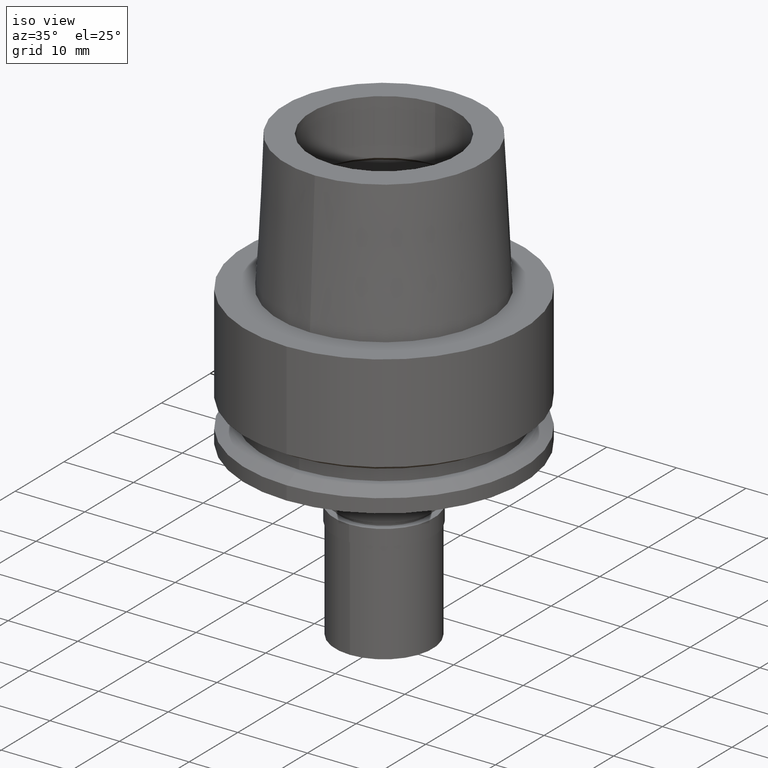
[diagram: clean part render]
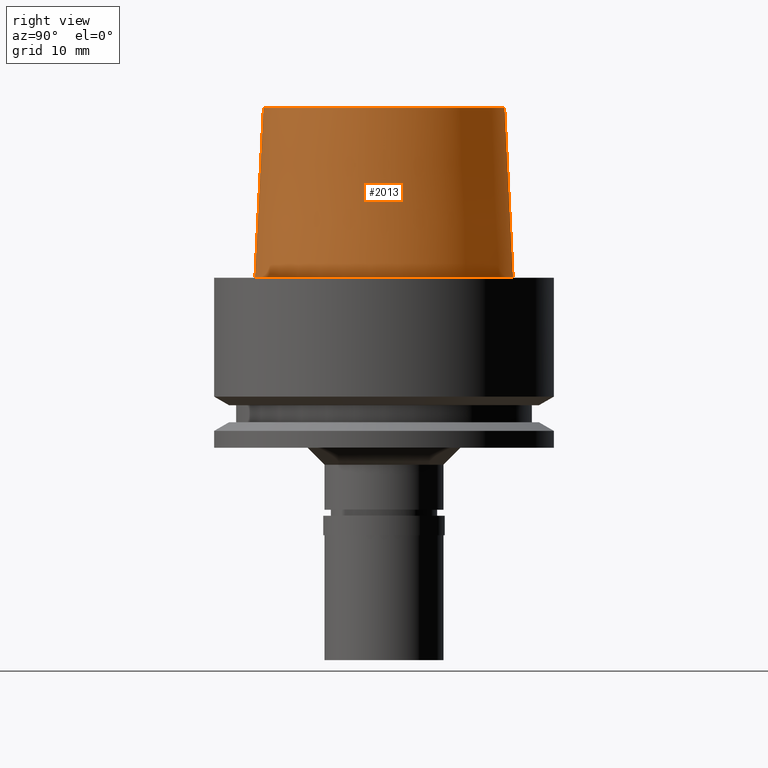
[diagram: tour spotlight — one face highlighted and labeled with its STEP entity id]
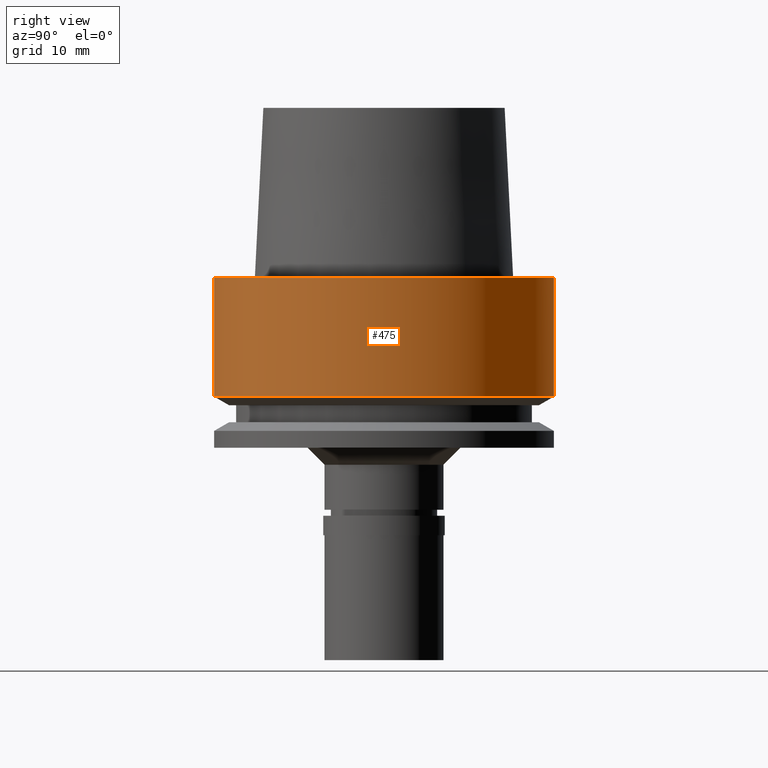
[diagram: tour spotlight — one face highlighted and labeled with its STEP entity id]
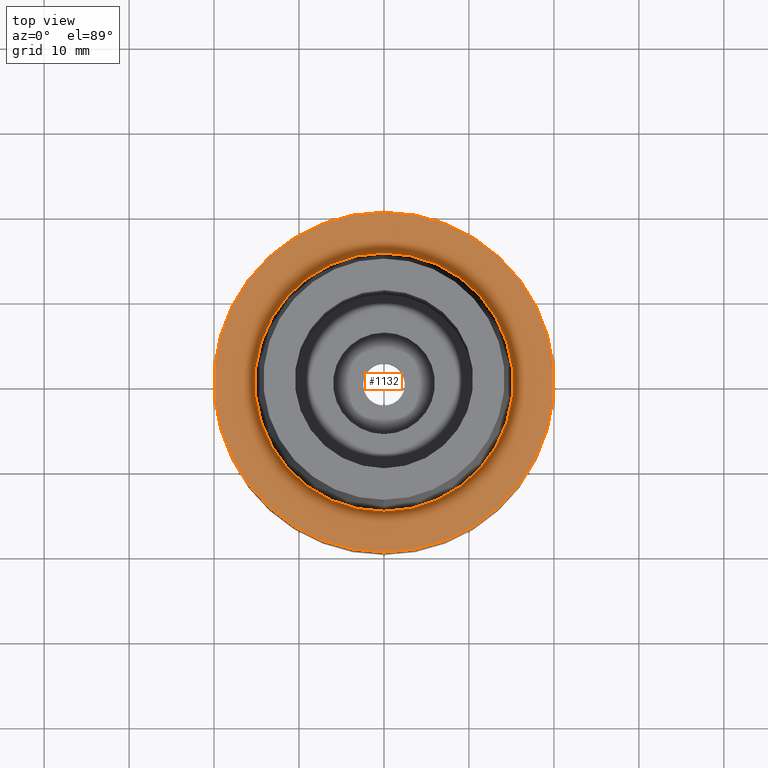
[diagram: tour spotlight — one face highlighted and labeled with its STEP entity id]
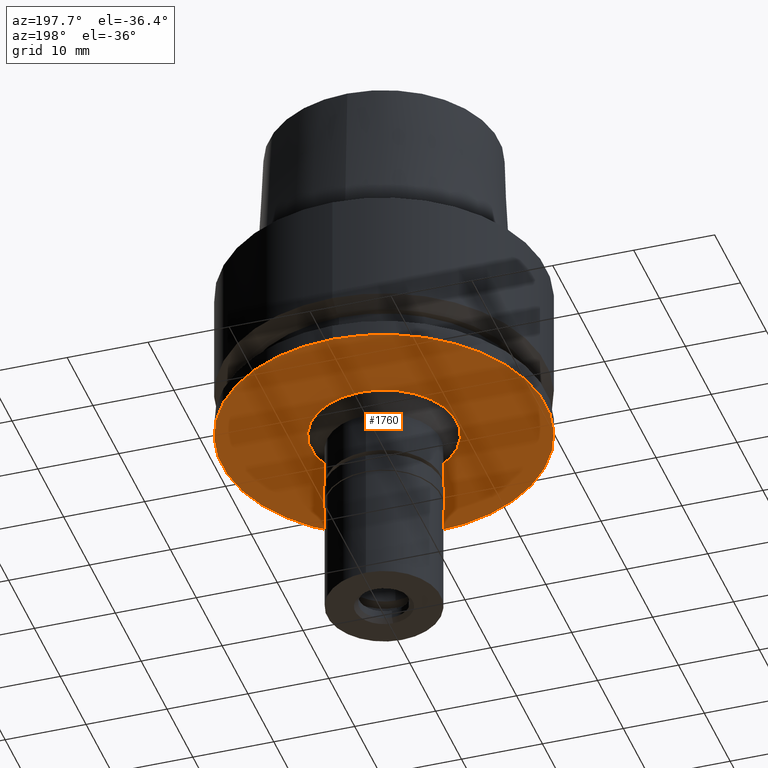
[diagram: tour spotlight — one face highlighted and labeled with its STEP entity id]
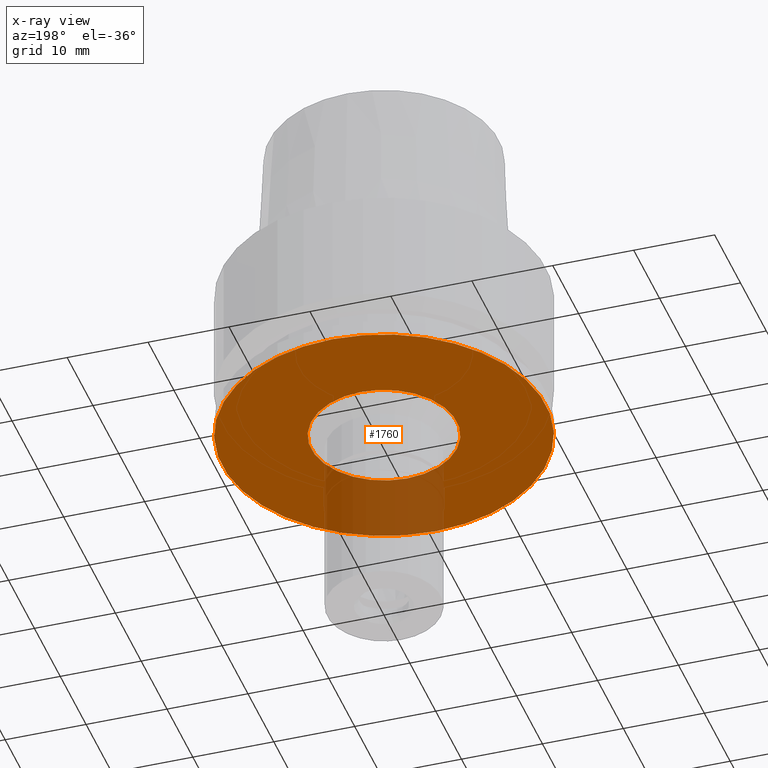
[diagram: x-ray of the same camera — body ghosted, this tour face saturated]
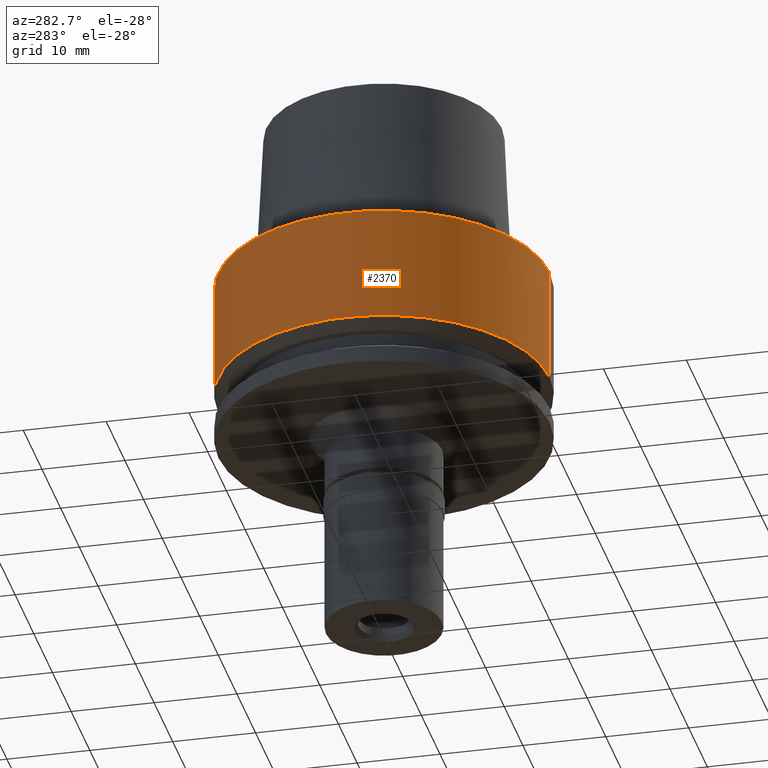
[diagram: tour spotlight — one face highlighted and labeled with its STEP entity id]
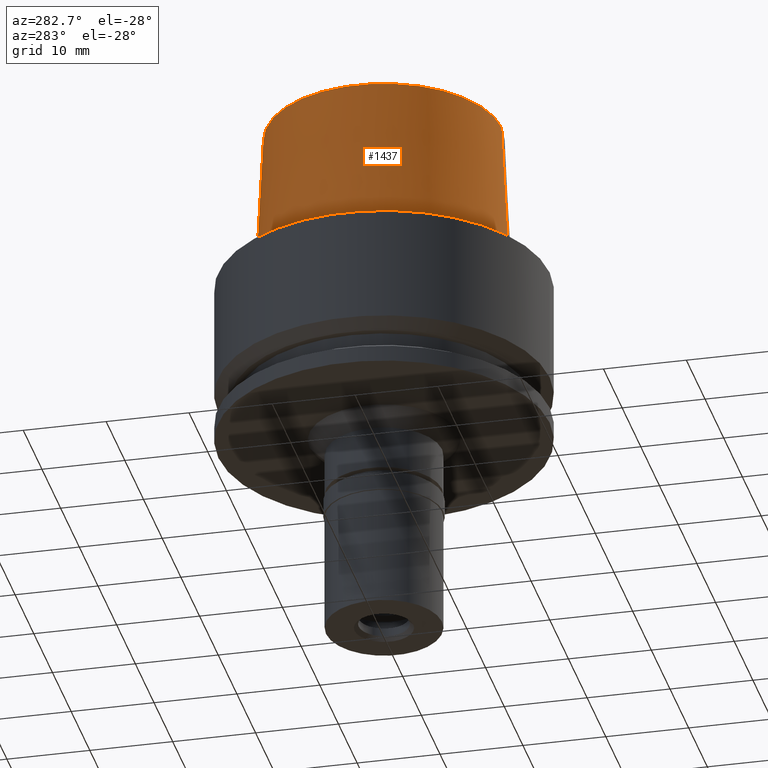
[diagram: tour spotlight — one face highlighted and labeled with its STEP entity id]
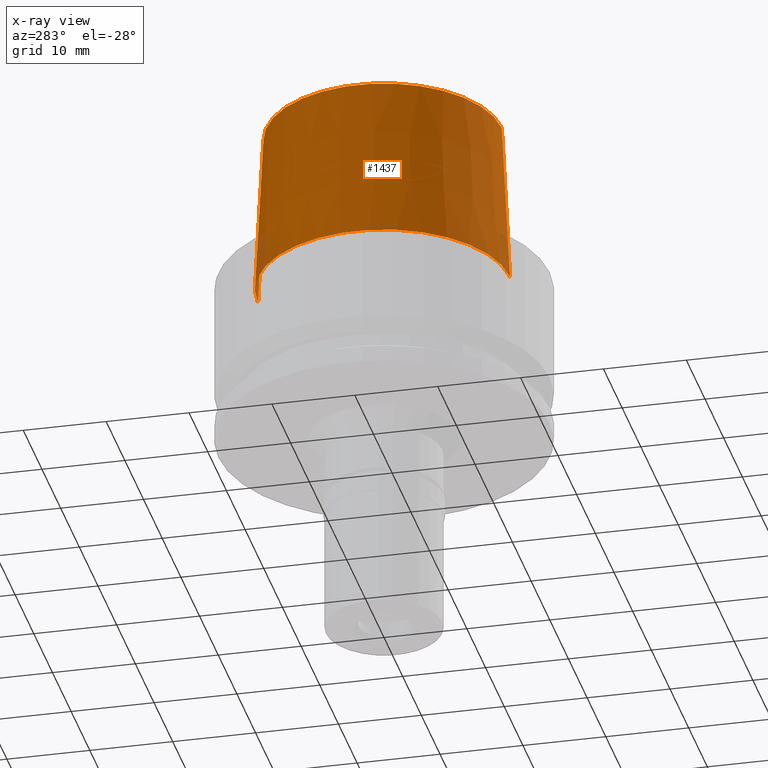
[diagram: x-ray of the same camera — body ghosted, this tour face saturated]
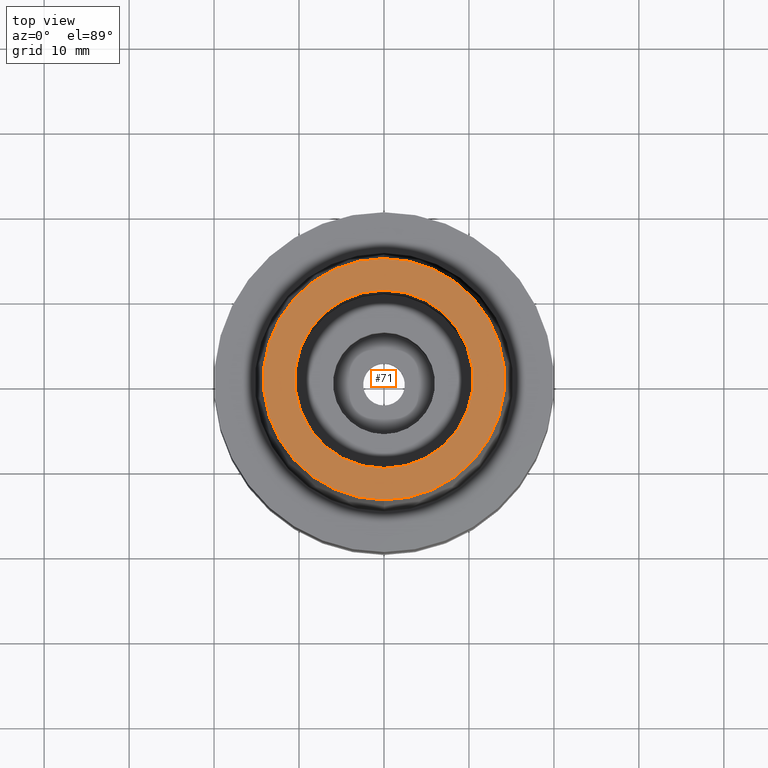
[diagram: tour spotlight — one face highlighted and labeled with its STEP entity id]
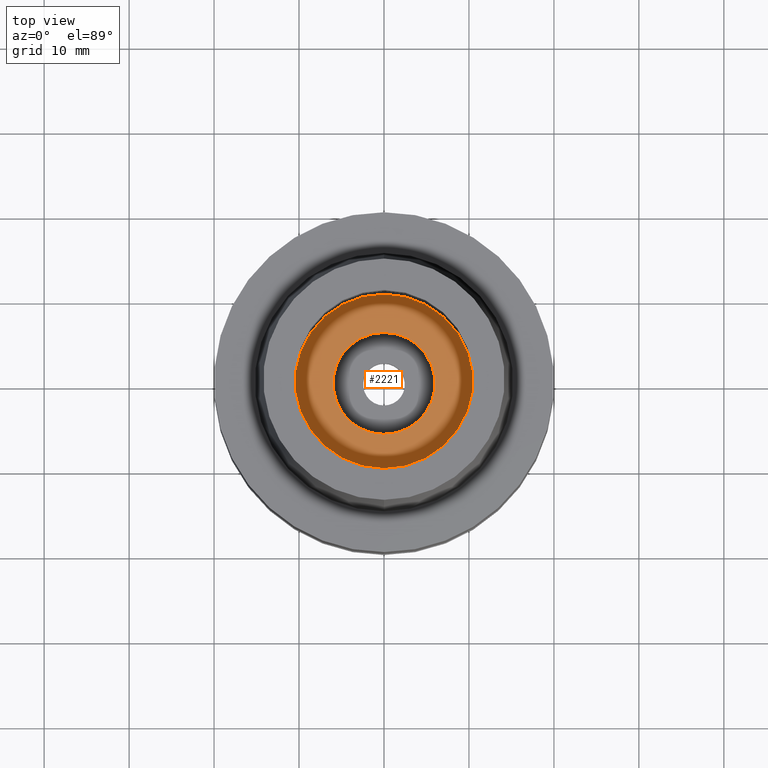
[diagram: tour spotlight — one face highlighted and labeled with its STEP entity id]
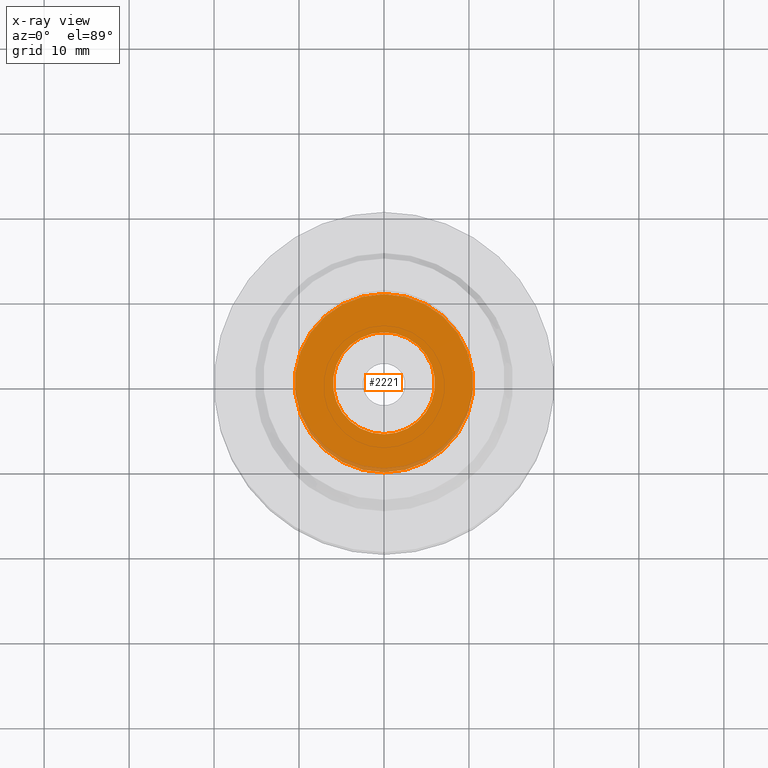
[diagram: x-ray of the same camera — body ghosted, this tour face saturated]
A machine part: a face-by-face anatomy tour. The part has 74 B-rep faces; the first image is the clean iso view, then the 8 largest visible faces are spotlighted one at a time (largest first), each with its STEP entity span.

Face 1 — right view, entity #2013. In plain terms, the highlighted conical surface has half-angle 2.862 deg.
Definition (entity closure, byte-faithful):
#1 = CARTESIAN_POINT ( 'NONE',  ( 0.0000000000000000000, 0.0000000000000000000, 6.821210263297000155E-13 ) ) ;
#52 = CARTESIAN_POINT ( 'NONE',  ( 0.0000000000000000000, -14.20000146305999955, 20.00000000000000000 ) ) ;
#283 = AXIS2_PLACEMENT_3D ( 'NONE', #1996, #2604, #1389 ) ;
#440 = DIRECTION ( 'NONE',  ( 0.0000000000000000000, 0.0000000000000000000, -1.000000000000000000 ) ) ;
#447 = LINE ( 'NONE', #2314, #2144 ) ;
#453 = DIRECTION ( 'NONE',  ( 0.0000000000000000000, -1.000000000000000000, 0.0000000000000000000 ) ) ;
#469 = CONICAL_SURFACE ( 'NONE', #2630, 14.70000054865000116, 0.04995830450907576964 ) ;
#512 = EDGE_LOOP ( 'NONE', ( #1118, #972, #1949, #1209 ) ) ;
#685 = AXIS2_PLACEMENT_3D ( 'NONE', #1, #881, #453 ) ;
#691 = VERTEX_POINT ( 'NONE', #1544 ) ;
#702 = DIRECTION ( 'NONE',  ( 0.0000000000000000000, -1.000000000000000000, 0.0000000000000000000 ) ) ;
#843 = CARTESIAN_POINT ( 'NONE',  ( 0.0000000000000000000, -14.20000146305999955, 20.00000000000000000 ) ) ;
#880 = EDGE_CURVE ( 'NONE', #2252, #1570, #1941, .T. ) ;
#881 = DIRECTION ( 'NONE',  ( 0.0000000000000000000, 0.0000000000000000000, 1.000000000000000000 ) ) ;
#972 = ORIENTED_EDGE ( 'NONE', *, *, #1927, .T. ) ;
#1051 = LINE ( 'NONE', #843, #2195 ) ;
#1118 = ORIENTED_EDGE ( 'NONE', *, *, #880, .T. ) ;
#1209 = ORIENTED_EDGE ( 'NONE', *, *, #1319, .F. ) ;
#1221 = CARTESIAN_POINT ( 'NONE',  ( 0.0000000000000000000, 15.19999963424000100, 3.801403636316999971E-13 ) ) ;
#1319 = EDGE_CURVE ( 'NONE', #2252, #1414, #447, .T. ) ;
#1389 = DIRECTION ( 'NONE',  ( 0.0000000000000000000, 1.000000000000000000, 0.0000000000000000000 ) ) ;
#1414 = VERTEX_POINT ( 'NONE', #1221 ) ;
#1520 = CARTESIAN_POINT ( 'NONE',  ( 0.0000000000000000000, 14.20000146305999955, 20.00000000000000000 ) ) ;
#1544 = CARTESIAN_POINT ( 'NONE',  ( 0.0000000000000000000, -15.19999963424000100, 3.801403636316999971E-13 ) ) ;
#1570 = VERTEX_POINT ( 'NONE', #52 ) ;
#1655 = DIRECTION ( 'NONE',  ( 0.0000000000000000000, -0.04993752584496928548, -0.9987523434327867378 ) ) ;
#1731 = CARTESIAN_POINT ( 'NONE',  ( 0.0000000000000000000, 0.0000000000000000000, 10.00000000000000000 ) ) ;
#1927 = EDGE_CURVE ( 'NONE', #1570, #691, #1051, .T. ) ;
#1941 = CIRCLE ( 'NONE', #283, 14.20000146305999955 ) ;
#1949 = ORIENTED_EDGE ( 'NONE', *, *, #2464, .T. ) ;
#1996 = CARTESIAN_POINT ( 'NONE',  ( 0.0000000000000000000, 0.0000000000000000000, 20.00000000000000000 ) ) ;
#2013 = ADVANCED_FACE ( 'NONE', ( #2552 ), #469, .T. ) ;
#2098 = DIRECTION ( 'NONE',  ( 0.0000000000000000000, 0.04993752584496928548, -0.9987523434327867378 ) ) ;
#2144 = VECTOR ( 'NONE', #2098, 999.9999999999998863 ) ;
#2195 = VECTOR ( 'NONE', #1655, 999.9999999999998863 ) ;
#2252 = VERTEX_POINT ( 'NONE', #1520 ) ;
#2293 = CIRCLE ( 'NONE', #685, 15.19999963424000100 ) ;
#2314 = CARTESIAN_POINT ( 'NONE',  ( 0.0000000000000000000, 14.20000146305999955, 20.00000000000000000 ) ) ;
#2464 = EDGE_CURVE ( 'NONE', #691, #1414, #2293, .T. ) ;
#2552 = FACE_OUTER_BOUND ( 'NONE', #512, .T. ) ;
#2604 = DIRECTION ( 'NONE',  ( 0.0000000000000000000, 0.0000000000000000000, -1.000000000000000000 ) ) ;
#2630 = AXIS2_PLACEMENT_3D ( 'NONE', #1731, #440, #702 ) ;

Face 2 — right view, entity #475. In plain terms, the highlighted cylindrical surface (partial cylindrical patch) has radius 20 mm, axis along (0, 0, 1).
Definition (entity closure, byte-faithful):
#50 = DIRECTION ( 'NONE',  ( 0.0000000000000000000, 1.000000000000000000, 0.0000000000000000000 ) ) ;
#294 = LINE ( 'NONE', #1337, #1592 ) ;
#325 = CARTESIAN_POINT ( 'NONE',  ( 0.0000000000000000000, 0.0000000000000000000, -3.552713678800999489E-14 ) ) ;
#475 = ADVANCED_FACE ( 'NONE', ( #2193 ), #1744, .T. ) ;
#638 = AXIS2_PLACEMENT_3D ( 'NONE', #325, #1572, #963 ) ;
#639 = ORIENTED_EDGE ( 'NONE', *, *, #2375, .F. ) ;
#776 = EDGE_LOOP ( 'NONE', ( #2641, #1145, #2185, #639 ) ) ;
#788 = EDGE_CURVE ( 'NONE', #2391, #2172, #2282, .T. ) ;
#820 = DIRECTION ( 'NONE',  ( 0.0000000000000000000, 2.439758400998999725E-14, -1.000000000000000000 ) ) ;
#850 = CARTESIAN_POINT ( 'NONE',  ( 0.0000000000000000000, -20.00000000000000000, -13.97927405538000123 ) ) ;
#963 = DIRECTION ( 'NONE',  ( 0.0000000000000000000, 1.000000000000000000, 0.0000000000000000000 ) ) ;
#1110 = CARTESIAN_POINT ( 'NONE',  ( 0.0000000000000000000, 0.0000000000000000000, -44.04999999999999716 ) ) ;
#1145 = ORIENTED_EDGE ( 'NONE', *, *, #1305, .T. ) ;
#1196 = LINE ( 'NONE', #1842, #2542 ) ;
#1305 = EDGE_CURVE ( 'NONE', #2172, #1966, #294, .T. ) ;
#1337 = CARTESIAN_POINT ( 'NONE',  ( 0.0000000000000000000, -20.00000000000000000, -1.894780628694000185E-14 ) ) ;
#1353 = DIRECTION ( 'NONE',  ( 0.0000000000000000000, -2.439758400998999725E-14, -1.000000000000000000 ) ) ;
#1376 = CARTESIAN_POINT ( 'NONE',  ( 0.0000000000000000000, -20.00000000000000000, -3.552713678800999489E-14 ) ) ;
#1433 = DIRECTION ( 'NONE',  ( 0.0000000000000000000, -1.000000000000000000, 0.0000000000000000000 ) ) ;
#1474 = EDGE_CURVE ( 'NONE', #1966, #2515, #2412, .T. ) ;
#1572 = DIRECTION ( 'NONE',  ( 0.0000000000000000000, 0.0000000000000000000, -1.000000000000000000 ) ) ;
#1592 = VECTOR ( 'NONE', #1353, 1000.000000000000000 ) ;
#1636 = DIRECTION ( 'NONE',  ( 0.0000000000000000000, 0.0000000000000000000, 1.000000000000000000 ) ) ;
#1744 = CYLINDRICAL_SURFACE ( 'NONE', #2541, 20.00000000000000000 ) ;
#1842 = CARTESIAN_POINT ( 'NONE',  ( 0.0000000000000000000, 20.00000000000000000, -1.894780628694000185E-14 ) ) ;
#1907 = CARTESIAN_POINT ( 'NONE',  ( 0.0000000000000000000, 0.0000000000000000000, -13.97927405538000123 ) ) ;
#1924 = DIRECTION ( 'NONE',  ( 0.0000000000000000000, 0.0000000000000000000, 1.000000000000000000 ) ) ;
#1966 = VERTEX_POINT ( 'NONE', #850 ) ;
#2172 = VERTEX_POINT ( 'NONE', #1376 ) ;
#2185 = ORIENTED_EDGE ( 'NONE', *, *, #1474, .T. ) ;
#2193 = FACE_OUTER_BOUND ( 'NONE', #776, .T. ) ;
#2260 = CARTESIAN_POINT ( 'NONE',  ( 0.0000000000000000000, 20.00000000000000000, -3.552713678800999489E-14 ) ) ;
#2282 = CIRCLE ( 'NONE', #638, 20.00000000000000000 ) ;
#2368 = AXIS2_PLACEMENT_3D ( 'NONE', #1907, #1636, #1433 ) ;
#2375 = EDGE_CURVE ( 'NONE', #2391, #2515, #1196, .T. ) ;
#2391 = VERTEX_POINT ( 'NONE', #2260 ) ;
#2412 = CIRCLE ( 'NONE', #2368, 20.00000000000000000 ) ;
#2515 = VERTEX_POINT ( 'NONE', #2522 ) ;
#2522 = CARTESIAN_POINT ( 'NONE',  ( 0.0000000000000000000, 20.00000000000000000, -13.97927405538000123 ) ) ;
#2541 = AXIS2_PLACEMENT_3D ( 'NONE', #1110, #1924, #50 ) ;
#2542 = VECTOR ( 'NONE', #820, 1000.000000000000000 ) ;
#2641 = ORIENTED_EDGE ( 'NONE', *, *, #788, .T. ) ;

Face 3 — top view, entity #1132. In plain terms, the highlighted planar face has unit normal (0, 0, 1).
Definition (entity closure, byte-faithful):
#1 = CARTESIAN_POINT ( 'NONE',  ( 0.0000000000000000000, 0.0000000000000000000, 6.821210263297000155E-13 ) ) ;
#175 = FACE_BOUND ( 'NONE', #1611, .T. ) ;
#316 = CARTESIAN_POINT ( 'NONE',  ( 0.0000000000000000000, 0.0000000000000000000, -3.552713678800999489E-14 ) ) ;
#325 = CARTESIAN_POINT ( 'NONE',  ( 0.0000000000000000000, 0.0000000000000000000, -3.552713678800999489E-14 ) ) ;
#382 = CIRCLE ( 'NONE', #2578, 20.00000000000000000 ) ;
#406 = FACE_OUTER_BOUND ( 'NONE', #1908, .T. ) ;
#453 = DIRECTION ( 'NONE',  ( 0.0000000000000000000, -1.000000000000000000, 0.0000000000000000000 ) ) ;
#633 = DIRECTION ( 'NONE',  ( 1.000000000000000000, 0.0000000000000000000, 0.0000000000000000000 ) ) ;
#638 = AXIS2_PLACEMENT_3D ( 'NONE', #325, #1572, #963 ) ;
#685 = AXIS2_PLACEMENT_3D ( 'NONE', #1, #881, #453 ) ;
#691 = VERTEX_POINT ( 'NONE', #1544 ) ;
#770 = CARTESIAN_POINT ( 'NONE',  ( 0.0000000000000000000, 0.0000000000000000000, 6.821210263297000155E-13 ) ) ;
#788 = EDGE_CURVE ( 'NONE', #2391, #2172, #2282, .T. ) ;
#794 = ORIENTED_EDGE ( 'NONE', *, *, #2464, .F. ) ;
#881 = DIRECTION ( 'NONE',  ( 0.0000000000000000000, 0.0000000000000000000, 1.000000000000000000 ) ) ;
#963 = DIRECTION ( 'NONE',  ( 0.0000000000000000000, 1.000000000000000000, 0.0000000000000000000 ) ) ;
#1132 = ADVANCED_FACE ( 'NONE', ( #406, #175 ), #1446, .T. ) ;
#1157 = DIRECTION ( 'NONE',  ( 0.0000000000000000000, 0.0000000000000000000, -1.000000000000000000 ) ) ;
#1221 = CARTESIAN_POINT ( 'NONE',  ( 0.0000000000000000000, 15.19999963424000100, 3.801403636316999971E-13 ) ) ;
#1251 = CARTESIAN_POINT ( 'NONE',  ( 0.0000000000000000000, 0.0000000000000000000, 0.0000000000000000000 ) ) ;
#1376 = CARTESIAN_POINT ( 'NONE',  ( 0.0000000000000000000, -20.00000000000000000, -3.552713678800999489E-14 ) ) ;
#1388 = AXIS2_PLACEMENT_3D ( 'NONE', #770, #2619, #2230 ) ;
#1414 = VERTEX_POINT ( 'NONE', #1221 ) ;
#1446 = PLANE ( 'NONE',  #1934 ) ;
#1447 = ORIENTED_EDGE ( 'NONE', *, *, #2281, .F. ) ;
#1544 = CARTESIAN_POINT ( 'NONE',  ( 0.0000000000000000000, -15.19999963424000100, 3.801403636316999971E-13 ) ) ;
#1572 = DIRECTION ( 'NONE',  ( 0.0000000000000000000, 0.0000000000000000000, -1.000000000000000000 ) ) ;
#1611 = EDGE_LOOP ( 'NONE', ( #1447, #794 ) ) ;
#1775 = DIRECTION ( 'NONE',  ( 0.0000000000000000000, -1.000000000000000000, 0.0000000000000000000 ) ) ;
#1908 = EDGE_LOOP ( 'NONE', ( #2466, #2607 ) ) ;
#1934 = AXIS2_PLACEMENT_3D ( 'NONE', #1251, #2070, #633 ) ;
#2070 = DIRECTION ( 'NONE',  ( 0.0000000000000000000, 0.0000000000000000000, 1.000000000000000000 ) ) ;
#2166 = EDGE_CURVE ( 'NONE', #2172, #2391, #382, .T. ) ;
#2172 = VERTEX_POINT ( 'NONE', #1376 ) ;
#2230 = DIRECTION ( 'NONE',  ( 0.0000000000000000000, 1.000000000000000000, 0.0000000000000000000 ) ) ;
#2260 = CARTESIAN_POINT ( 'NONE',  ( 0.0000000000000000000, 20.00000000000000000, -3.552713678800999489E-14 ) ) ;
#2281 = EDGE_CURVE ( 'NONE', #1414, #691, #2634, .T. ) ;
#2282 = CIRCLE ( 'NONE', #638, 20.00000000000000000 ) ;
#2293 = CIRCLE ( 'NONE', #685, 15.19999963424000100 ) ;
#2391 = VERTEX_POINT ( 'NONE', #2260 ) ;
#2464 = EDGE_CURVE ( 'NONE', #691, #1414, #2293, .T. ) ;
#2466 = ORIENTED_EDGE ( 'NONE', *, *, #788, .F. ) ;
#2578 = AXIS2_PLACEMENT_3D ( 'NONE', #316, #1157, #1775 ) ;
#2607 = ORIENTED_EDGE ( 'NONE', *, *, #2166, .F. ) ;
#2619 = DIRECTION ( 'NONE',  ( 0.0000000000000000000, 0.0000000000000000000, 1.000000000000000000 ) ) ;
#2634 = CIRCLE ( 'NONE', #1388, 15.19999963424000100 ) ;

Face 4 — auxiliary view, entity #1760. An x-ray twin of the same camera follows (body ghosted, this face saturated) — the face is partly hidden behind the body. In plain terms, the highlighted planar face has unit normal (0, 0, 1).
Definition (entity closure, byte-faithful):
#32 = DIRECTION ( 'NONE',  ( 0.0000000000000000000, 0.0000000000000000000, -1.000000000000000000 ) ) ;
#92 = EDGE_CURVE ( 'NONE', #260, #344, #1508, .T. ) ;
#107 = ORIENTED_EDGE ( 'NONE', *, *, #92, .F. ) ;
#108 = AXIS2_PLACEMENT_3D ( 'NONE', #1193, #2677, #2477 ) ;
#260 = VERTEX_POINT ( 'NONE', #852 ) ;
#320 = DIRECTION ( 'NONE',  ( 1.000000000000000000, 0.0000000000000000000, 0.0000000000000000000 ) ) ;
#326 = AXIS2_PLACEMENT_3D ( 'NONE', #2239, #2474, #2268 ) ;
#344 = VERTEX_POINT ( 'NONE', #1458 ) ;
#471 = CIRCLE ( 'NONE', #1514, 20.00000000000000000 ) ;
#535 = CARTESIAN_POINT ( 'NONE',  ( 0.0000000000000000000, 9.000000000000000000, -20.00000000000000000 ) ) ;
#601 = CIRCLE ( 'NONE', #2457, 9.000000000000000000 ) ;
#743 = VERTEX_POINT ( 'NONE', #535 ) ;
#852 = CARTESIAN_POINT ( 'NONE',  ( 0.0000000000000000000, -20.00000000000000000, -20.00000000000000000 ) ) ;
#883 = CARTESIAN_POINT ( 'NONE',  ( 0.0000000000000000000, 0.0000000000000000000, -20.00000000000000000 ) ) ;
#1108 = EDGE_CURVE ( 'NONE', #1315, #743, #601, .T. ) ;
#1133 = EDGE_LOOP ( 'NONE', ( #2524, #1332 ) ) ;
#1141 = CARTESIAN_POINT ( 'NONE',  ( 0.0000000000000000000, 0.0000000000000000000, -20.00000000000000000 ) ) ;
#1165 = CIRCLE ( 'NONE', #326, 9.000000000000000000 ) ;
#1193 = CARTESIAN_POINT ( 'NONE',  ( 0.0000000000000000000, 0.0000000000000000000, -20.00000000000000000 ) ) ;
#1281 = CARTESIAN_POINT ( 'NONE',  ( 0.0000000000000000000, -9.000000000000000000, -20.00000000000000000 ) ) ;
#1315 = VERTEX_POINT ( 'NONE', #1281 ) ;
#1326 = EDGE_LOOP ( 'NONE', ( #1346, #107 ) ) ;
#1332 = ORIENTED_EDGE ( 'NONE', *, *, #1108, .F. ) ;
#1346 = ORIENTED_EDGE ( 'NONE', *, *, #2602, .F. ) ;
#1422 = DIRECTION ( 'NONE',  ( 0.0000000000000000000, -1.000000000000000000, 0.0000000000000000000 ) ) ;
#1458 = CARTESIAN_POINT ( 'NONE',  ( 0.0000000000000000000, 20.00000000000000000, -20.00000000000000000 ) ) ;
#1485 = EDGE_CURVE ( 'NONE', #743, #1315, #1165, .T. ) ;
#1508 = CIRCLE ( 'NONE', #108, 20.00000000000000000 ) ;
#1514 = AXIS2_PLACEMENT_3D ( 'NONE', #2568, #2127, #1711 ) ;
#1711 = DIRECTION ( 'NONE',  ( 0.0000000000000000000, 1.000000000000000000, 0.0000000000000000000 ) ) ;
#1760 = ADVANCED_FACE ( 'NONE', ( #1779, #2632 ), #2431, .F. ) ;
#1779 = FACE_OUTER_BOUND ( 'NONE', #1326, .T. ) ;
#1790 = DIRECTION ( 'NONE',  ( 0.0000000000000000000, 0.0000000000000000000, 1.000000000000000000 ) ) ;
#2127 = DIRECTION ( 'NONE',  ( 0.0000000000000000000, 0.0000000000000000000, 1.000000000000000000 ) ) ;
#2239 = CARTESIAN_POINT ( 'NONE',  ( 0.0000000000000000000, 0.0000000000000000000, -20.00000000000000000 ) ) ;
#2268 = DIRECTION ( 'NONE',  ( 0.0000000000000000000, 1.000000000000000000, 0.0000000000000000000 ) ) ;
#2431 = PLANE ( 'NONE',  #2460 ) ;
#2457 = AXIS2_PLACEMENT_3D ( 'NONE', #883, #32, #1422 ) ;
#2460 = AXIS2_PLACEMENT_3D ( 'NONE', #1141, #1790, #320 ) ;
#2474 = DIRECTION ( 'NONE',  ( 0.0000000000000000000, 0.0000000000000000000, -1.000000000000000000 ) ) ;
#2477 = DIRECTION ( 'NONE',  ( 0.0000000000000000000, -1.000000000000000000, 0.0000000000000000000 ) ) ;
#2524 = ORIENTED_EDGE ( 'NONE', *, *, #1485, .F. ) ;
#2568 = CARTESIAN_POINT ( 'NONE',  ( 0.0000000000000000000, 0.0000000000000000000, -20.00000000000000000 ) ) ;
#2602 = EDGE_CURVE ( 'NONE', #344, #260, #471, .T. ) ;
#2632 = FACE_BOUND ( 'NONE', #1133, .T. ) ;
#2677 = DIRECTION ( 'NONE',  ( 0.0000000000000000000, 0.0000000000000000000, 1.000000000000000000 ) ) ;

Face 5 — auxiliary view, entity #2370. In plain terms, the highlighted cylindrical surface (partial cylindrical patch) has radius 20 mm, axis along (0, 0, 1).
Definition (entity closure, byte-faithful):
#133 = DIRECTION ( 'NONE',  ( 0.0000000000000000000, 1.000000000000000000, 0.0000000000000000000 ) ) ;
#148 = CARTESIAN_POINT ( 'NONE',  ( 0.0000000000000000000, 0.0000000000000000000, -44.04999999999999716 ) ) ;
#294 = LINE ( 'NONE', #1337, #1592 ) ;
#316 = CARTESIAN_POINT ( 'NONE',  ( 0.0000000000000000000, 0.0000000000000000000, -3.552713678800999489E-14 ) ) ;
#363 = DIRECTION ( 'NONE',  ( 0.0000000000000000000, 0.0000000000000000000, 1.000000000000000000 ) ) ;
#382 = CIRCLE ( 'NONE', #2578, 20.00000000000000000 ) ;
#393 = FACE_OUTER_BOUND ( 'NONE', #1980, .T. ) ;
#483 = ORIENTED_EDGE ( 'NONE', *, *, #2166, .T. ) ;
#609 = AXIS2_PLACEMENT_3D ( 'NONE', #148, #1024, #133 ) ;
#820 = DIRECTION ( 'NONE',  ( 0.0000000000000000000, 2.439758400998999725E-14, -1.000000000000000000 ) ) ;
#850 = CARTESIAN_POINT ( 'NONE',  ( 0.0000000000000000000, -20.00000000000000000, -13.97927405538000123 ) ) ;
#866 = CIRCLE ( 'NONE', #2108, 20.00000000000000000 ) ;
#875 = DIRECTION ( 'NONE',  ( 0.0000000000000000000, 1.000000000000000000, 0.0000000000000000000 ) ) ;
#1024 = DIRECTION ( 'NONE',  ( 0.0000000000000000000, 0.0000000000000000000, 1.000000000000000000 ) ) ;
#1157 = DIRECTION ( 'NONE',  ( 0.0000000000000000000, 0.0000000000000000000, -1.000000000000000000 ) ) ;
#1196 = LINE ( 'NONE', #1842, #2542 ) ;
#1227 = CYLINDRICAL_SURFACE ( 'NONE', #609, 20.00000000000000000 ) ;
#1305 = EDGE_CURVE ( 'NONE', #2172, #1966, #294, .T. ) ;
#1337 = CARTESIAN_POINT ( 'NONE',  ( 0.0000000000000000000, -20.00000000000000000, -1.894780628694000185E-14 ) ) ;
#1353 = DIRECTION ( 'NONE',  ( 0.0000000000000000000, -2.439758400998999725E-14, -1.000000000000000000 ) ) ;
#1376 = CARTESIAN_POINT ( 'NONE',  ( 0.0000000000000000000, -20.00000000000000000, -3.552713678800999489E-14 ) ) ;
#1386 = EDGE_CURVE ( 'NONE', #2515, #1966, #866, .T. ) ;
#1574 = ORIENTED_EDGE ( 'NONE', *, *, #1386, .T. ) ;
#1592 = VECTOR ( 'NONE', #1353, 1000.000000000000000 ) ;
#1775 = DIRECTION ( 'NONE',  ( 0.0000000000000000000, -1.000000000000000000, 0.0000000000000000000 ) ) ;
#1842 = CARTESIAN_POINT ( 'NONE',  ( 0.0000000000000000000, 20.00000000000000000, -1.894780628694000185E-14 ) ) ;
#1846 = ORIENTED_EDGE ( 'NONE', *, *, #2375, .T. ) ;
#1849 = CARTESIAN_POINT ( 'NONE',  ( 0.0000000000000000000, 0.0000000000000000000, -13.97927405538000123 ) ) ;
#1966 = VERTEX_POINT ( 'NONE', #850 ) ;
#1980 = EDGE_LOOP ( 'NONE', ( #1574, #2669, #483, #1846 ) ) ;
#2108 = AXIS2_PLACEMENT_3D ( 'NONE', #1849, #363, #875 ) ;
#2166 = EDGE_CURVE ( 'NONE', #2172, #2391, #382, .T. ) ;
#2172 = VERTEX_POINT ( 'NONE', #1376 ) ;
#2260 = CARTESIAN_POINT ( 'NONE',  ( 0.0000000000000000000, 20.00000000000000000, -3.552713678800999489E-14 ) ) ;
#2370 = ADVANCED_FACE ( 'NONE', ( #393 ), #1227, .T. ) ;
#2375 = EDGE_CURVE ( 'NONE', #2391, #2515, #1196, .T. ) ;
#2391 = VERTEX_POINT ( 'NONE', #2260 ) ;
#2515 = VERTEX_POINT ( 'NONE', #2522 ) ;
#2522 = CARTESIAN_POINT ( 'NONE',  ( 0.0000000000000000000, 20.00000000000000000, -13.97927405538000123 ) ) ;
#2542 = VECTOR ( 'NONE', #820, 1000.000000000000000 ) ;
#2578 = AXIS2_PLACEMENT_3D ( 'NONE', #316, #1157, #1775 ) ;
#2669 = ORIENTED_EDGE ( 'NONE', *, *, #1305, .F. ) ;

Face 6 — auxiliary view, entity #1437. An x-ray twin of the same camera follows (body ghosted, this face saturated) — the face is partly hidden behind the body. In plain terms, the highlighted conical surface has half-angle 2.862 deg.
Definition (entity closure, byte-faithful):
#52 = CARTESIAN_POINT ( 'NONE',  ( 0.0000000000000000000, -14.20000146305999955, 20.00000000000000000 ) ) ;
#80 = ORIENTED_EDGE ( 'NONE', *, *, #1319, .T. ) ;
#242 = CONICAL_SURFACE ( 'NONE', #1757, 14.70000054865000116, 0.04995830450907576964 ) ;
#447 = LINE ( 'NONE', #2314, #2144 ) ;
#663 = DIRECTION ( 'NONE',  ( 0.0000000000000000000, 0.0000000000000000000, -1.000000000000000000 ) ) ;
#691 = VERTEX_POINT ( 'NONE', #1544 ) ;
#770 = CARTESIAN_POINT ( 'NONE',  ( 0.0000000000000000000, 0.0000000000000000000, 6.821210263297000155E-13 ) ) ;
#843 = CARTESIAN_POINT ( 'NONE',  ( 0.0000000000000000000, -14.20000146305999955, 20.00000000000000000 ) ) ;
#929 = DIRECTION ( 'NONE',  ( 0.0000000000000000000, -1.000000000000000000, 0.0000000000000000000 ) ) ;
#1017 = DIRECTION ( 'NONE',  ( 0.0000000000000000000, -1.000000000000000000, 0.0000000000000000000 ) ) ;
#1051 = LINE ( 'NONE', #843, #2195 ) ;
#1155 = EDGE_LOOP ( 'NONE', ( #2120, #2029, #2206, #80 ) ) ;
#1221 = CARTESIAN_POINT ( 'NONE',  ( 0.0000000000000000000, 15.19999963424000100, 3.801403636316999971E-13 ) ) ;
#1319 = EDGE_CURVE ( 'NONE', #2252, #1414, #447, .T. ) ;
#1388 = AXIS2_PLACEMENT_3D ( 'NONE', #770, #2619, #2230 ) ;
#1414 = VERTEX_POINT ( 'NONE', #1221 ) ;
#1437 = ADVANCED_FACE ( 'NONE', ( #1654 ), #242, .T. ) ;
#1520 = CARTESIAN_POINT ( 'NONE',  ( 0.0000000000000000000, 14.20000146305999955, 20.00000000000000000 ) ) ;
#1544 = CARTESIAN_POINT ( 'NONE',  ( 0.0000000000000000000, -15.19999963424000100, 3.801403636316999971E-13 ) ) ;
#1570 = VERTEX_POINT ( 'NONE', #52 ) ;
#1654 = FACE_OUTER_BOUND ( 'NONE', #1155, .T. ) ;
#1655 = DIRECTION ( 'NONE',  ( 0.0000000000000000000, -0.04993752584496928548, -0.9987523434327867378 ) ) ;
#1757 = AXIS2_PLACEMENT_3D ( 'NONE', #2516, #663, #1017 ) ;
#1781 = EDGE_CURVE ( 'NONE', #1570, #2252, #2325, .T. ) ;
#1927 = EDGE_CURVE ( 'NONE', #1570, #691, #1051, .T. ) ;
#2029 = ORIENTED_EDGE ( 'NONE', *, *, #1927, .F. ) ;
#2098 = DIRECTION ( 'NONE',  ( 0.0000000000000000000, 0.04993752584496928548, -0.9987523434327867378 ) ) ;
#2120 = ORIENTED_EDGE ( 'NONE', *, *, #2281, .T. ) ;
#2144 = VECTOR ( 'NONE', #2098, 999.9999999999998863 ) ;
#2195 = VECTOR ( 'NONE', #1655, 999.9999999999998863 ) ;
#2206 = ORIENTED_EDGE ( 'NONE', *, *, #1781, .T. ) ;
#2224 = CARTESIAN_POINT ( 'NONE',  ( 0.0000000000000000000, 0.0000000000000000000, 20.00000000000000000 ) ) ;
#2230 = DIRECTION ( 'NONE',  ( 0.0000000000000000000, 1.000000000000000000, 0.0000000000000000000 ) ) ;
#2252 = VERTEX_POINT ( 'NONE', #1520 ) ;
#2281 = EDGE_CURVE ( 'NONE', #1414, #691, #2634, .T. ) ;
#2314 = CARTESIAN_POINT ( 'NONE',  ( 0.0000000000000000000, 14.20000146305999955, 20.00000000000000000 ) ) ;
#2325 = CIRCLE ( 'NONE', #2673, 14.20000146305999955 ) ;
#2516 = CARTESIAN_POINT ( 'NONE',  ( 0.0000000000000000000, 0.0000000000000000000, 10.00000000000000000 ) ) ;
#2599 = DIRECTION ( 'NONE',  ( 0.0000000000000000000, 0.0000000000000000000, -1.000000000000000000 ) ) ;
#2619 = DIRECTION ( 'NONE',  ( 0.0000000000000000000, 0.0000000000000000000, 1.000000000000000000 ) ) ;
#2634 = CIRCLE ( 'NONE', #1388, 15.19999963424000100 ) ;
#2673 = AXIS2_PLACEMENT_3D ( 'NONE', #2224, #2599, #929 ) ;

Face 7 — top view, entity #71. In plain terms, the highlighted planar face has unit normal (0, 0, 1).
Definition (entity closure, byte-faithful):
#52 = CARTESIAN_POINT ( 'NONE',  ( 0.0000000000000000000, -14.20000146305999955, 20.00000000000000000 ) ) ;
#55 = AXIS2_PLACEMENT_3D ( 'NONE', #1488, #1441, #1292 ) ;
#71 = ADVANCED_FACE ( 'NONE', ( #1595, #1020 ), #351, .T. ) ;
#283 = AXIS2_PLACEMENT_3D ( 'NONE', #1996, #2604, #1389 ) ;
#351 = PLANE ( 'NONE',  #643 ) ;
#435 = VERTEX_POINT ( 'NONE', #2546 ) ;
#554 = CIRCLE ( 'NONE', #55, 10.50000000000000000 ) ;
#643 = AXIS2_PLACEMENT_3D ( 'NONE', #1854, #2057, #1627 ) ;
#653 = ORIENTED_EDGE ( 'NONE', *, *, #880, .F. ) ;
#699 = ORIENTED_EDGE ( 'NONE', *, *, #1781, .F. ) ;
#809 = VERTEX_POINT ( 'NONE', #1229 ) ;
#859 = ORIENTED_EDGE ( 'NONE', *, *, #1450, .F. ) ;
#880 = EDGE_CURVE ( 'NONE', #2252, #1570, #1941, .T. ) ;
#924 = ORIENTED_EDGE ( 'NONE', *, *, #2306, .F. ) ;
#929 = DIRECTION ( 'NONE',  ( 0.0000000000000000000, -1.000000000000000000, 0.0000000000000000000 ) ) ;
#1020 = FACE_BOUND ( 'NONE', #1647, .T. ) ;
#1229 = CARTESIAN_POINT ( 'NONE',  ( 0.0000000000000000000, 10.50000000000000000, 20.00000000000000000 ) ) ;
#1292 = DIRECTION ( 'NONE',  ( 0.0000000000000000000, -1.000000000000000000, 0.0000000000000000000 ) ) ;
#1389 = DIRECTION ( 'NONE',  ( 0.0000000000000000000, 1.000000000000000000, 0.0000000000000000000 ) ) ;
#1441 = DIRECTION ( 'NONE',  ( 0.0000000000000000000, 0.0000000000000000000, 1.000000000000000000 ) ) ;
#1450 = EDGE_CURVE ( 'NONE', #435, #809, #554, .T. ) ;
#1488 = CARTESIAN_POINT ( 'NONE',  ( 0.0000000000000000000, 0.0000000000000000000, 20.00000000000000000 ) ) ;
#1520 = CARTESIAN_POINT ( 'NONE',  ( 0.0000000000000000000, 14.20000146305999955, 20.00000000000000000 ) ) ;
#1570 = VERTEX_POINT ( 'NONE', #52 ) ;
#1595 = FACE_OUTER_BOUND ( 'NONE', #2002, .T. ) ;
#1627 = DIRECTION ( 'NONE',  ( 1.000000000000000000, 0.0000000000000000000, 0.0000000000000000000 ) ) ;
#1647 = EDGE_LOOP ( 'NONE', ( #924, #859 ) ) ;
#1767 = CIRCLE ( 'NONE', #2246, 10.50000000000000000 ) ;
#1781 = EDGE_CURVE ( 'NONE', #1570, #2252, #2325, .T. ) ;
#1854 = CARTESIAN_POINT ( 'NONE',  ( 0.0000000000000000000, 0.0000000000000000000, 20.00000000000000000 ) ) ;
#1941 = CIRCLE ( 'NONE', #283, 14.20000146305999955 ) ;
#1996 = CARTESIAN_POINT ( 'NONE',  ( 0.0000000000000000000, 0.0000000000000000000, 20.00000000000000000 ) ) ;
#2002 = EDGE_LOOP ( 'NONE', ( #653, #699 ) ) ;
#2057 = DIRECTION ( 'NONE',  ( 0.0000000000000000000, 0.0000000000000000000, 1.000000000000000000 ) ) ;
#2203 = DIRECTION ( 'NONE',  ( 0.0000000000000000000, 1.000000000000000000, 0.0000000000000000000 ) ) ;
#2224 = CARTESIAN_POINT ( 'NONE',  ( 0.0000000000000000000, 0.0000000000000000000, 20.00000000000000000 ) ) ;
#2246 = AXIS2_PLACEMENT_3D ( 'NONE', #2666, #2423, #2203 ) ;
#2252 = VERTEX_POINT ( 'NONE', #1520 ) ;
#2306 = EDGE_CURVE ( 'NONE', #809, #435, #1767, .T. ) ;
#2325 = CIRCLE ( 'NONE', #2673, 14.20000146305999955 ) ;
#2423 = DIRECTION ( 'NONE',  ( 0.0000000000000000000, 0.0000000000000000000, 1.000000000000000000 ) ) ;
#2546 = CARTESIAN_POINT ( 'NONE',  ( 0.0000000000000000000, -10.50000000000000000, 20.00000000000000000 ) ) ;
#2599 = DIRECTION ( 'NONE',  ( 0.0000000000000000000, 0.0000000000000000000, -1.000000000000000000 ) ) ;
#2604 = DIRECTION ( 'NONE',  ( 0.0000000000000000000, 0.0000000000000000000, -1.000000000000000000 ) ) ;
#2666 = CARTESIAN_POINT ( 'NONE',  ( 0.0000000000000000000, 0.0000000000000000000, 20.00000000000000000 ) ) ;
#2673 = AXIS2_PLACEMENT_3D ( 'NONE', #2224, #2599, #929 ) ;

Face 8 — top view, entity #2221. An x-ray twin of the same camera follows (body ghosted, this face saturated) — the face is partly hidden behind the body. In plain terms, the highlighted planar face has unit normal (0, 0, 1).
Definition (entity closure, byte-faithful):
#33 = DIRECTION ( 'NONE',  ( 0.0000000000000000000, 0.0000000000000000000, 1.000000000000000000 ) ) ;
#157 = DIRECTION ( 'NONE',  ( 0.0000000000000000000, 0.0000000000000000000, 1.000000000000000000 ) ) ;
#184 = CARTESIAN_POINT ( 'NONE',  ( 0.0000000000000000000, 10.50000000000000000, -7.950000000000000178 ) ) ;
#257 = CARTESIAN_POINT ( 'NONE',  ( 0.0000000000000000000, 0.0000000000000000000, -7.950000000000000178 ) ) ;
#288 = ORIENTED_EDGE ( 'NONE', *, *, #2636, .F. ) ;
#307 = DIRECTION ( 'NONE',  ( 1.000000000000000000, 0.0000000000000000000, 0.0000000000000000000 ) ) ;
#323 = AXIS2_PLACEMENT_3D ( 'NONE', #2686, #1254, #839 ) ;
#353 = ORIENTED_EDGE ( 'NONE', *, *, #1357, .F. ) ;
#381 = FACE_OUTER_BOUND ( 'NONE', #2036, .T. ) ;
#573 = VERTEX_POINT ( 'NONE', #184 ) ;
#587 = EDGE_LOOP ( 'NONE', ( #353, #288 ) ) ;
#642 = AXIS2_PLACEMENT_3D ( 'NONE', #1304, #669, #1102 ) ;
#669 = DIRECTION ( 'NONE',  ( 0.0000000000000000000, 0.0000000000000000000, -1.000000000000000000 ) ) ;
#822 = CIRCLE ( 'NONE', #323, 10.50000000000000000 ) ;
#832 = CIRCLE ( 'NONE', #998, 6.000000000000000000 ) ;
#839 = DIRECTION ( 'NONE',  ( 0.0000000000000000000, -1.000000000000000000, 0.0000000000000000000 ) ) ;
#938 = EDGE_CURVE ( 'NONE', #2367, #573, #822, .T. ) ;
#998 = AXIS2_PLACEMENT_3D ( 'NONE', #257, #2384, #1957 ) ;
#1047 = PLANE ( 'NONE',  #2075 ) ;
#1094 = CARTESIAN_POINT ( 'NONE',  ( 0.0000000000000000000, 0.0000000000000000000, -7.950000000000000178 ) ) ;
#1102 = DIRECTION ( 'NONE',  ( 0.0000000000000000000, 1.000000000000000000, 0.0000000000000000000 ) ) ;
#1207 = CIRCLE ( 'NONE', #2576, 6.000000000000000000 ) ;
#1235 = DIRECTION ( 'NONE',  ( 0.0000000000000000000, 1.000000000000000000, 0.0000000000000000000 ) ) ;
#1254 = DIRECTION ( 'NONE',  ( 0.0000000000000000000, 0.0000000000000000000, -1.000000000000000000 ) ) ;
#1304 = CARTESIAN_POINT ( 'NONE',  ( 0.0000000000000000000, 0.0000000000000000000, -7.950000000000000178 ) ) ;
#1317 = VERTEX_POINT ( 'NONE', #2255 ) ;
#1356 = CARTESIAN_POINT ( 'NONE',  ( 0.0000000000000000000, 0.0000000000000000000, -7.950000000000000178 ) ) ;
#1357 = EDGE_CURVE ( 'NONE', #1521, #1317, #1207, .T. ) ;
#1517 = CARTESIAN_POINT ( 'NONE',  ( 0.0000000000000000000, 6.000000000000000000, -7.950000000000000178 ) ) ;
#1521 = VERTEX_POINT ( 'NONE', #1517 ) ;
#1523 = ORIENTED_EDGE ( 'NONE', *, *, #938, .F. ) ;
#1651 = FACE_BOUND ( 'NONE', #587, .T. ) ;
#1669 = EDGE_CURVE ( 'NONE', #573, #2367, #1682, .T. ) ;
#1682 = CIRCLE ( 'NONE', #642, 10.50000000000000000 ) ;
#1957 = DIRECTION ( 'NONE',  ( 0.0000000000000000000, -1.000000000000000000, 0.0000000000000000000 ) ) ;
#2015 = CARTESIAN_POINT ( 'NONE',  ( 0.0000000000000000000, -10.50000000000000000, -7.950000000000000178 ) ) ;
#2036 = EDGE_LOOP ( 'NONE', ( #2296, #1523 ) ) ;
#2075 = AXIS2_PLACEMENT_3D ( 'NONE', #1356, #33, #307 ) ;
#2221 = ADVANCED_FACE ( 'NONE', ( #381, #1651 ), #1047, .T. ) ;
#2255 = CARTESIAN_POINT ( 'NONE',  ( 0.0000000000000000000, -6.000000000000000000, -7.950000000000000178 ) ) ;
#2296 = ORIENTED_EDGE ( 'NONE', *, *, #1669, .F. ) ;
#2367 = VERTEX_POINT ( 'NONE', #2015 ) ;
#2384 = DIRECTION ( 'NONE',  ( 0.0000000000000000000, 0.0000000000000000000, 1.000000000000000000 ) ) ;
#2576 = AXIS2_PLACEMENT_3D ( 'NONE', #1094, #157, #1235 ) ;
#2636 = EDGE_CURVE ( 'NONE', #1317, #1521, #832, .T. ) ;
#2686 = CARTESIAN_POINT ( 'NONE',  ( 0.0000000000000000000, 0.0000000000000000000, -7.950000000000000178 ) ) ;